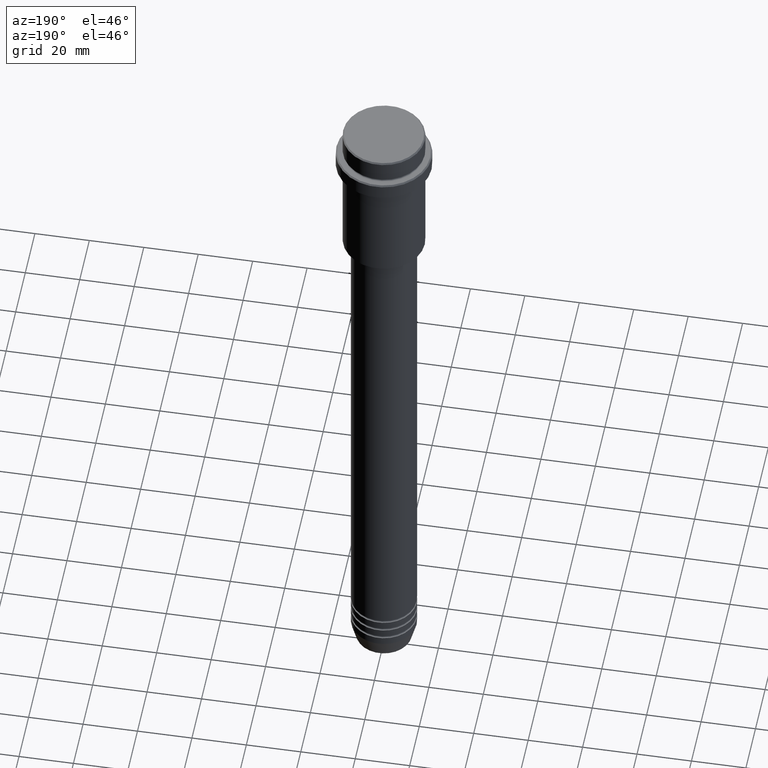
[diagram: clean part render]
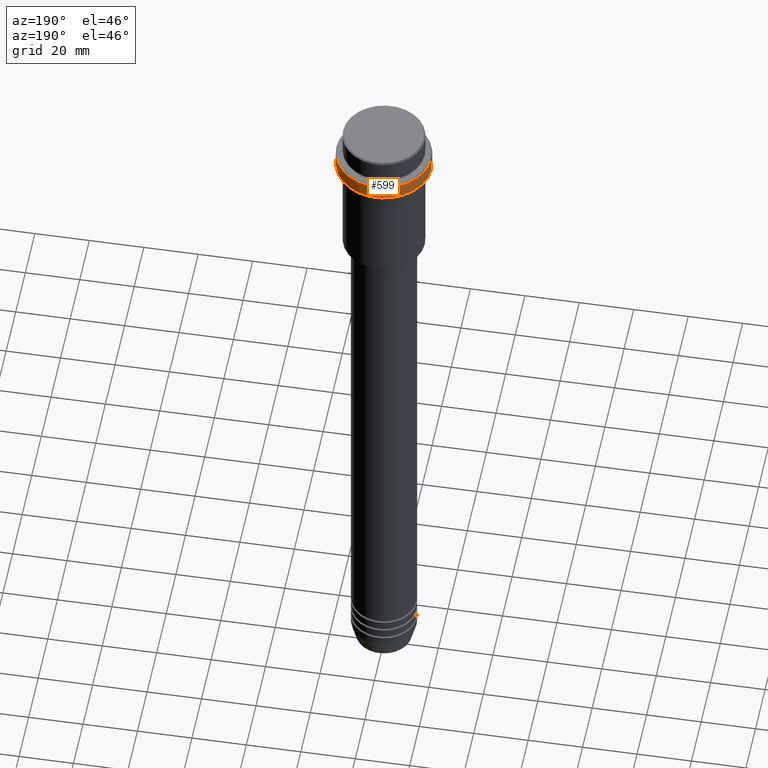
[diagram: same view with one face highlighted and labeled with its STEP entity id]
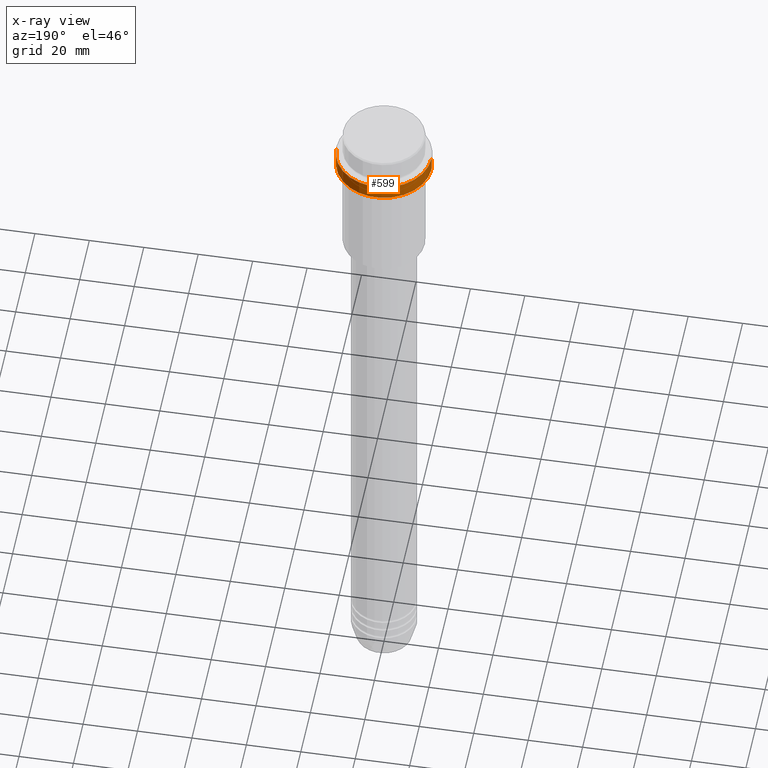
[diagram: x-ray of the same camera — body ghosted, the highlighted face saturated]
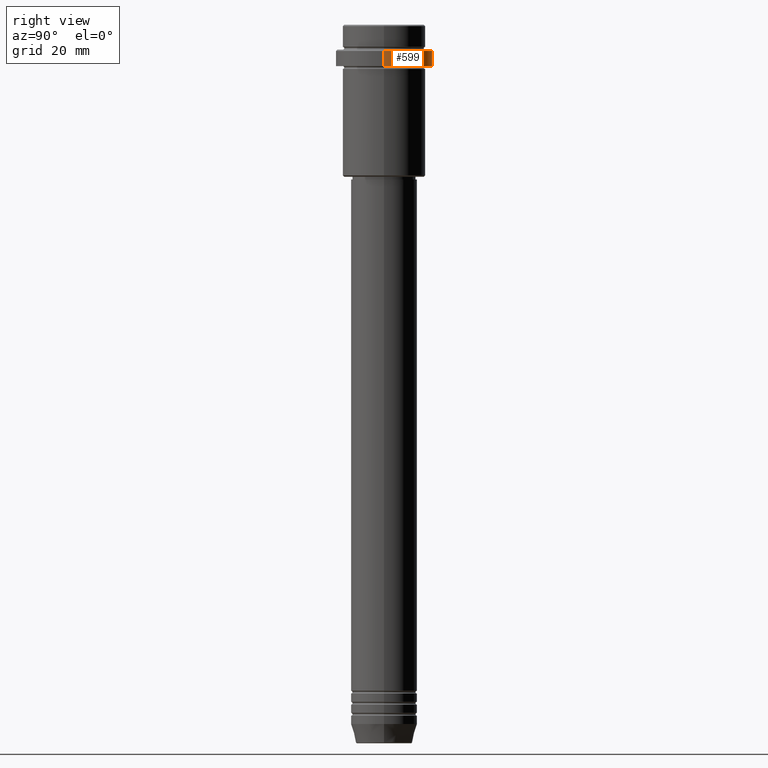
[diagram: same view with one face highlighted and labeled with its STEP entity id]
A machine part, auxiliary view. The second image highlights one B-rep face of the part: STEP entity #599.
The next image is the same camera in x-ray: the body ghosted, the highlighted face saturated — about 0% of this face is hidden behind the body in this view.
A second angle (right view) of the same face is appended — the face is thin or edge-on in the first view.
In plain terms, the highlighted cylindrical surface (partial cylindrical patch) has radius 17.5 mm, axis along (-0, -0, 1).
Its self-contained STEP definition (entity closure, byte-faithful):
#92 = CARTESIAN_POINT ( 'NONE',  ( -17.50000000000000000, 2.143131898507868248E-15, 0.000000000000000000 ) ) ;
#110 = EDGE_LOOP ( 'NONE', ( #558, #1219, #454, #659 ) ) ;
#116 = CARTESIAN_POINT ( 'NONE',  ( 0.000000000000000000, 0.000000000000000000, -9.500000000000000000 ) ) ;
#164 = VERTEX_POINT ( 'NONE', #1309 ) ;
#181 = LINE ( 'NONE', #92, #1363 ) ;
#236 = EDGE_CURVE ( 'NONE', #164, #1002, #950, .T. ) ;
#253 = EDGE_CURVE ( 'NONE', #928, #1002, #738, .T. ) ;
#287 = AXIS2_PLACEMENT_3D ( 'NONE', #116, #963, #647 ) ;
#297 = FACE_OUTER_BOUND ( 'NONE', #110, .T. ) ;
#303 = DIRECTION ( 'NONE',  ( -0.000000000000000000, -0.000000000000000000, 1.000000000000000000 ) ) ;
#304 = DIRECTION ( 'NONE',  ( 1.000000000000000000, 0.000000000000000000, 0.000000000000000000 ) ) ;
#404 = CYLINDRICAL_SURFACE ( 'NONE', #1140, 17.50000000000000000 ) ;
#454 = ORIENTED_EDGE ( 'NONE', *, *, #236, .T. ) ;
#492 = AXIS2_PLACEMENT_3D ( 'NONE', #1387, #641, #1401 ) ;
#558 = ORIENTED_EDGE ( 'NONE', *, *, #594, .T. ) ;
#594 = EDGE_CURVE ( 'NONE', #928, #1198, #1365, .T. ) ;
#599 = ADVANCED_FACE ( 'NONE', ( #297 ), #404, .T. ) ;
#641 = DIRECTION ( 'NONE',  ( -0.000000000000000000, -0.000000000000000000, 1.000000000000000000 ) ) ;
#647 = DIRECTION ( 'NONE',  ( 1.000000000000000000, 0.000000000000000000, 0.000000000000000000 ) ) ;
#659 = ORIENTED_EDGE ( 'NONE', *, *, #253, .F. ) ;
#673 = CARTESIAN_POINT ( 'NONE',  ( -17.50000000000000000, 2.143131898507868248E-15, -15.00000000000000000 ) ) ;
#738 = LINE ( 'NONE', #1191, #882 ) ;
#842 = DIRECTION ( 'NONE',  ( -0.000000000000000000, -0.000000000000000000, 1.000000000000000000 ) ) ;
#867 = DIRECTION ( 'NONE',  ( -0.000000000000000000, -0.000000000000000000, 1.000000000000000000 ) ) ;
#882 = VECTOR ( 'NONE', #867, 1000.000000000000000 ) ;
#928 = VERTEX_POINT ( 'NONE', #1048 ) ;
#950 = CIRCLE ( 'NONE', #287, 17.50000000000000000 ) ;
#963 = DIRECTION ( 'NONE',  ( 0.000000000000000000, 0.000000000000000000, -1.000000000000000000 ) ) ;
#1002 = VERTEX_POINT ( 'NONE', #1188 ) ;
#1048 = CARTESIAN_POINT ( 'NONE',  ( 17.50000000000000000, 0.000000000000000000, -15.00000000000000000 ) ) ;
#1140 = AXIS2_PLACEMENT_3D ( 'NONE', #1179, #842, #304 ) ;
#1179 = CARTESIAN_POINT ( 'NONE',  ( 0.000000000000000000, 0.000000000000000000, 0.000000000000000000 ) ) ;
#1188 = CARTESIAN_POINT ( 'NONE',  ( 17.50000000000000000, 0.000000000000000000, -9.500000000000000000 ) ) ;
#1191 = CARTESIAN_POINT ( 'NONE',  ( 17.50000000000000000, 0.000000000000000000, 0.000000000000000000 ) ) ;
#1198 = VERTEX_POINT ( 'NONE', #673 ) ;
#1219 = ORIENTED_EDGE ( 'NONE', *, *, #1400, .T. ) ;
#1309 = CARTESIAN_POINT ( 'NONE',  ( -17.50000000000000000, 2.143131898507868248E-15, -9.500000000000000000 ) ) ;
#1363 = VECTOR ( 'NONE', #303, 1000.000000000000000 ) ;
#1365 = CIRCLE ( 'NONE', #492, 17.50000000000000000 ) ;
#1387 = CARTESIAN_POINT ( 'NONE',  ( 0.000000000000000000, 0.000000000000000000, -15.00000000000000000 ) ) ;
#1400 = EDGE_CURVE ( 'NONE', #1198, #164, #181, .T. ) ;
#1401 = DIRECTION ( 'NONE',  ( 1.000000000000000000, 0.000000000000000000, 0.000000000000000000 ) ) ;